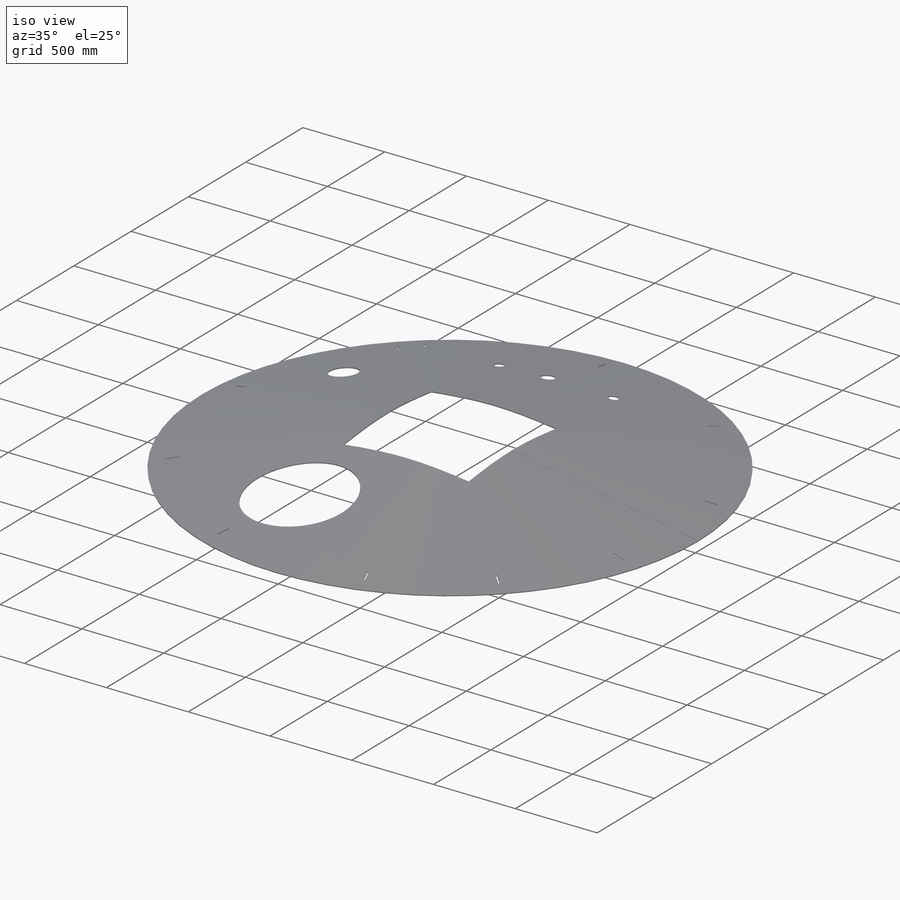
[diagram: iso view]
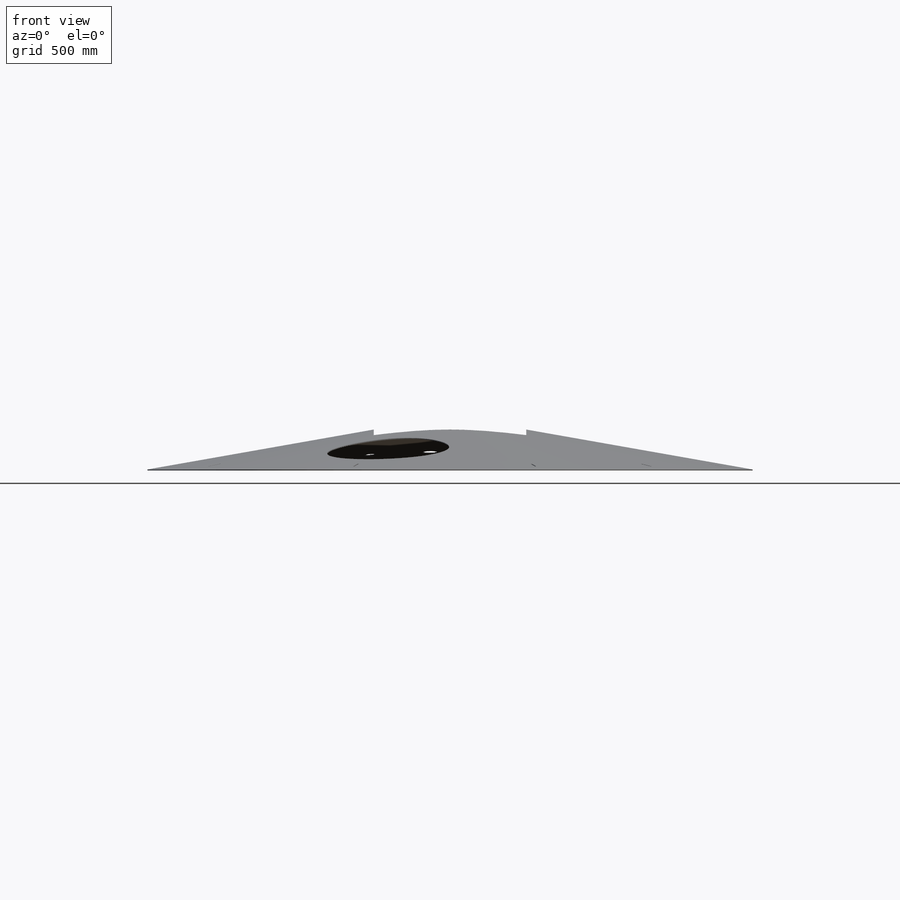
[diagram: front view]
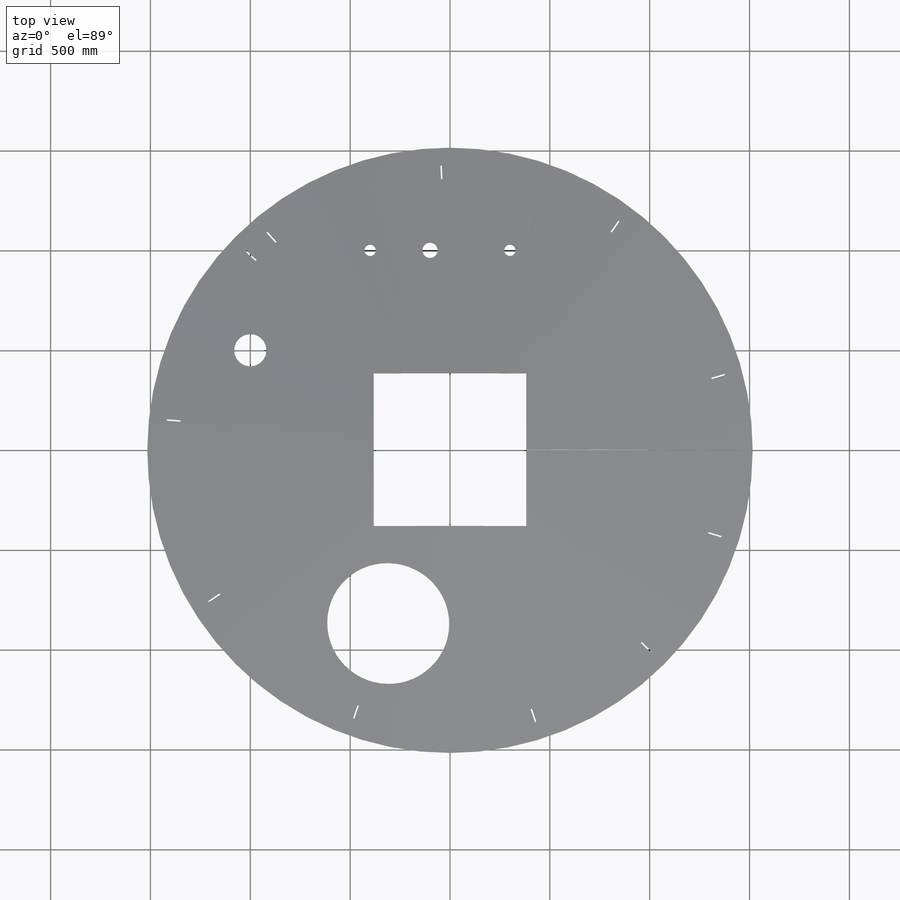
[diagram: top view]
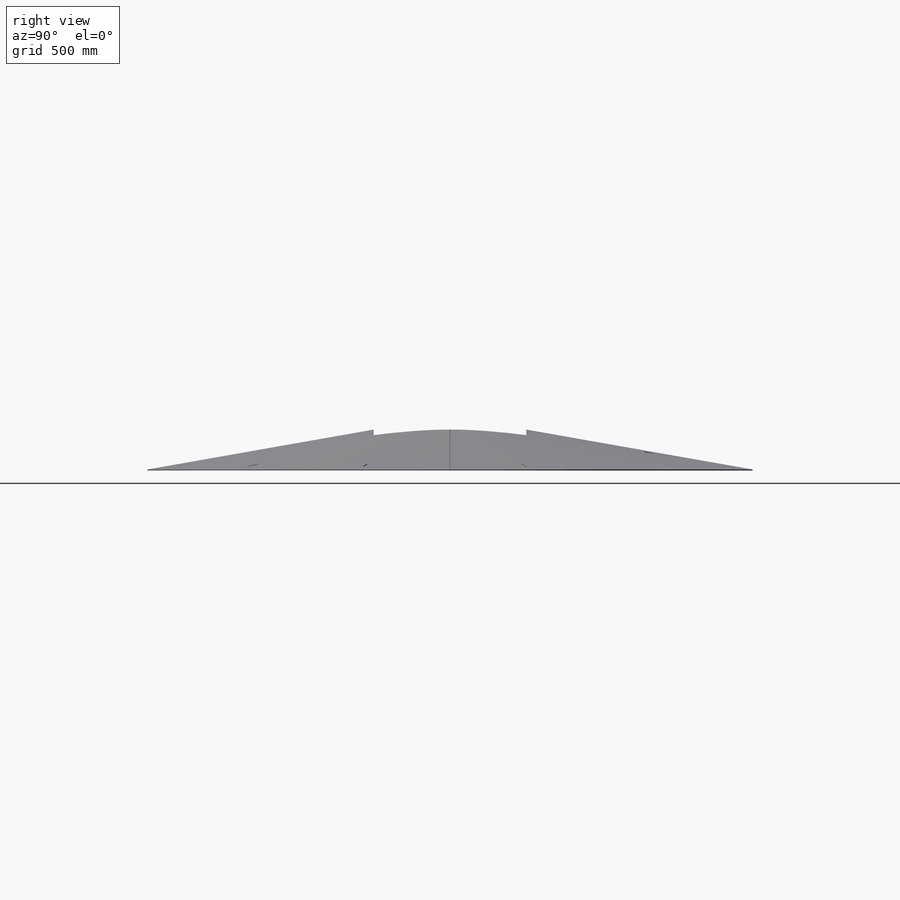
[diagram: right view]
SOLIDWORKS PART (.sldprt)
format: sldprt  version: not decoded by parser v0  size: 1,518,592 bytes
history: native  units: mm
features: sketch x12, cut_extrude x5, material x4, plane x4, sheet_metal_op x1 + 1 further entry (+9 scaffold rows collapsed; 4 parser-record rows omitted)
feature tree (40):
  scaffold x9  (default folders/planes/origin — collapsed)
  material  "Material <nicht festgelegt>"
  material  "Skizzenlayout"
  material  "Steuerreferenzen(Schreibgeschützt)"
  material  "Koordinatensysteme(Schreibgeschützt)"
  plane  "Ebene vorne"
  plane  "Ebene oben"
  plane  "Ebene rechts"
  sketch  "Skizze2"  dims[Tränenblechdicke=5.0mm MT=7.0mm D1=1.0mm]
  parser-record x4  (decoder bookkeeping rows leaked as tree rows — omitted from the tree; the rows remain in map.json)
  plane  "Ebene-Ausformung-Oben"
  sketch  "Skizze3"  dims[D1=1.5mm]
  sheet_metal_op  "Blech1"
  sketch  "Skizze6"  dims[D1=612.0mm]
  cut_extrude  "Linear austragen1"  [1 undecoded]
  sketch  "Skizze4"  dims[D1=764.0mm]
  cut_extrude  "Schnitt-Linear austragen1"  Depth=65536 Ausschnitt Filter<Einschweißzarge-TRF20_I-1>=65536
  sketch  "Skizze41"  dims[D1=764.0mm]
  cut_extrude  "Schnitt-Linear austragen11"  Depth=65536 Ausschnitt Silobaromat<Stutzen Silobaromat DN150-1>=65536
  sketch  "Skizze61"  dims[D1=56.0mm Linear austragen11=0.0deg Ausschnitt Vollmelder<Muffe_1-1_2-Zoll-1>=65536.0]
  sketch  "Skizze62"  dims[D1=56.0mm Linear austragen12=0.0deg Ausschnitt Füllstand<Muffe_1-1_2-Zoll-2>=65536.0]
  sketch  "Skizze42"  dims[D1=76.0mm]
  cut_extrude  "Schnitt-Linear austragen12"  Depth=65536 Ausschnitt Druckschalter<Stutzen_Durckschalter_DN70-1>=65536
  sketch  "Skizze63"  dims[D1=0.5mm D2=0.5mm D3=0.5mm D4=0.5mm D5=0.5mm D6=0.5mm D7=0.5mm D8=0.5mm D9=0.5mm D10=0.5mm D11=0.5mm]
  cut_extrude  "Schnitt-Linear austragen13"  [1 undecoded]
  "Abwicklung1"
  sketch  "Biegung-Linien1"
  sketch  "Rahmen1"
  sketch  "Abmessung"  dims[MB=~3074.912087mm ML=~3076.694716mm]
decode coverage: 13 of 18 modeling features carry decoded parameters; 1 rows unclassified (native names shown)
note: ~ marks probable driven/reference dimensions
note: 2 parameter values undecoded
note: suppression state not decoded; provenance and decode notes live in map.json
